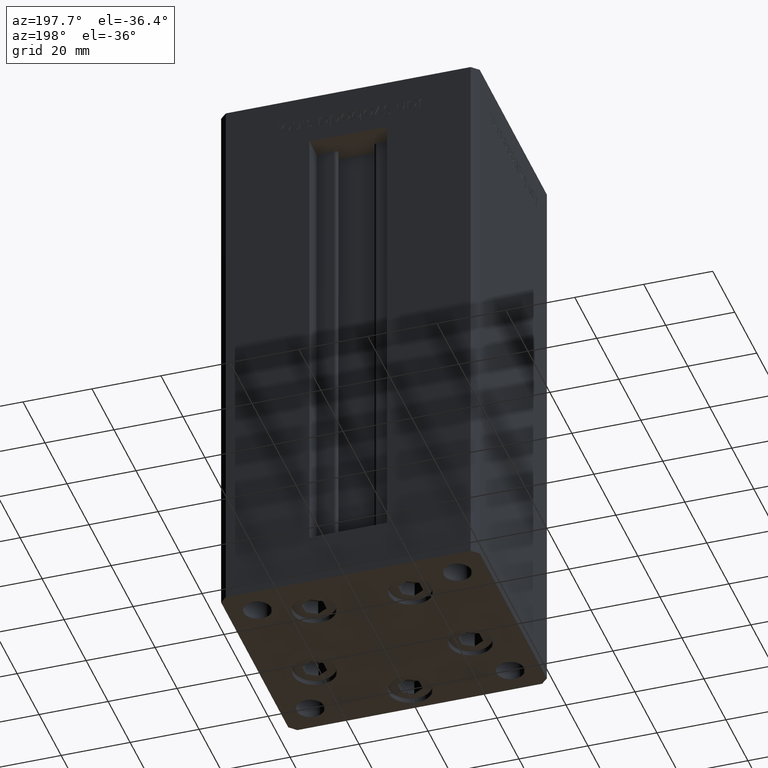
[diagram: clean part render]
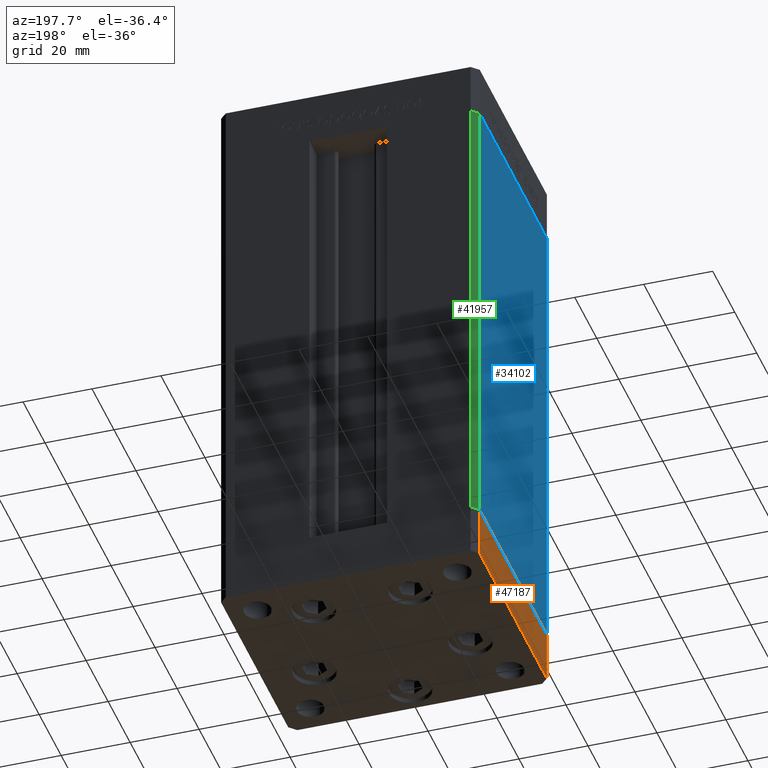
[diagram: same view with three faces highlighted in distinct colors, each labeled with its STEP entity id]
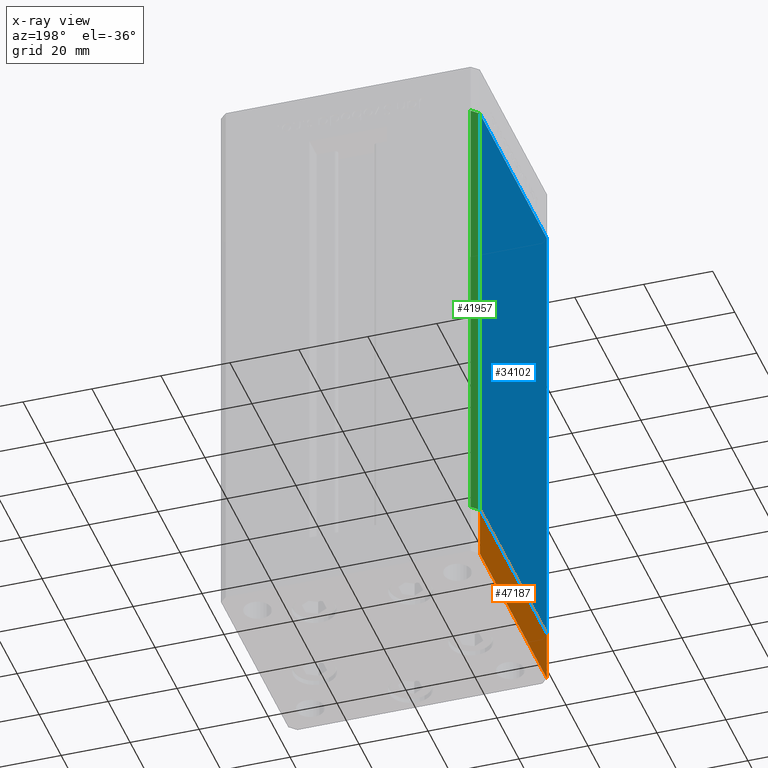
[diagram: x-ray of the same camera — body ghosted, the three highlighted faces saturated]
A machine part, auxiliary view with three faces highlighted in distinct colors.
The next image is the same camera in x-ray (body ghosted, the three faces saturated) — at least one of them is partly hidden behind the body in this view.
Their STEP definitions:

[orange] entity #47187 — the highlighted planar face has unit normal (-1, 0, 0).
#4428 = CARTESIAN_POINT ( 'NONE',  ( 37.49999999999992184, 30.50000000000001066, 0.000000000000000000 ) ) ;
#4507 = LINE ( 'NONE', #36712, #32258 ) ;
#6826 = VERTEX_POINT ( 'NONE', #4428 ) ;
#7796 = VERTEX_POINT ( 'NONE', #28559 ) ;
#10261 = VECTOR ( 'NONE', #15707, 1000.000000000000000 ) ;
#11123 = AXIS2_PLACEMENT_3D ( 'NONE', #48661, #16507, #20466 ) ;
#11572 = EDGE_CURVE ( 'NONE', #7796, #50452, #51569, .T. ) ;
#11751 = CARTESIAN_POINT ( 'NONE',  ( 37.50000000000001421, -30.50000000000000711, -15.00000000000000000 ) ) ;
#12047 = CARTESIAN_POINT ( 'NONE',  ( 37.49999999999992184, 30.50000000000001066, -15.00000000000000000 ) ) ;
#12560 = CARTESIAN_POINT ( 'NONE',  ( 37.49999999999992184, 30.50000000000001066, -15.00000000000000000 ) ) ;
#14407 = EDGE_CURVE ( 'NONE', #7796, #26868, #4507, .T. ) ;
#15489 = LINE ( 'NONE', #12047, #20384 ) ;
#15707 = DIRECTION ( 'NONE',  ( -1.478780668045802821E-15, 1.000000000000000000, 0.000000000000000000 ) ) ;
#16507 = DIRECTION ( 'NONE',  ( 1.000000000000000000, 1.478780668045803018E-15, -0.000000000000000000 ) ) ;
#17932 = LINE ( 'NONE', #34018, #23931 ) ;
#20384 = VECTOR ( 'NONE', #31593, 1000.000000000000000 ) ;
#20466 = DIRECTION ( 'NONE',  ( -1.478780668045803018E-15, 1.000000000000000000, 0.000000000000000000 ) ) ;
#21552 = ORIENTED_EDGE ( 'NONE', *, *, #11572, .T. ) ;
#23505 = EDGE_CURVE ( 'NONE', #26868, #6826, #17932, .T. ) ;
#23931 = VECTOR ( 'NONE', #26110, 1000.000000000000000 ) ;
#24268 = EDGE_LOOP ( 'NONE', ( #48319, #43652, #21552, #48952 ) ) ;
#25202 = PLANE ( 'NONE',  #11123 ) ;
#26110 = DIRECTION ( 'NONE',  ( -1.478780668045802821E-15, 1.000000000000000000, 0.000000000000000000 ) ) ;
#26868 = VERTEX_POINT ( 'NONE', #33401 ) ;
#28559 = CARTESIAN_POINT ( 'NONE',  ( 37.50000000000001421, -30.50000000000000711, -15.00000000000000000 ) ) ;
#31593 = DIRECTION ( 'NONE',  ( 0.000000000000000000, 0.000000000000000000, 1.000000000000000000 ) ) ;
#32258 = VECTOR ( 'NONE', #48033, 1000.000000000000000 ) ;
#33378 = FACE_OUTER_BOUND ( 'NONE', #24268, .T. ) ;
#33401 = CARTESIAN_POINT ( 'NONE',  ( 37.50000000000001421, -30.50000000000000711, 0.000000000000000000 ) ) ;
#34018 = CARTESIAN_POINT ( 'NONE',  ( 37.50000000000001421, -30.50000000000000711, 0.000000000000000000 ) ) ;
#36712 = CARTESIAN_POINT ( 'NONE',  ( 37.50000000000001421, -30.50000000000000711, -15.00000000000000000 ) ) ;
#41970 = EDGE_CURVE ( 'NONE', #50452, #6826, #15489, .T. ) ;
#43652 = ORIENTED_EDGE ( 'NONE', *, *, #14407, .F. ) ;
#47187 = ADVANCED_FACE ( 'NONE', ( #33378 ), #25202, .T. ) ;
#48033 = DIRECTION ( 'NONE',  ( 0.000000000000000000, 0.000000000000000000, 1.000000000000000000 ) ) ;
#48319 = ORIENTED_EDGE ( 'NONE', *, *, #23505, .F. ) ;
#48661 = CARTESIAN_POINT ( 'NONE',  ( 37.50000000000001421, -30.50000000000000711, -15.00000000000000000 ) ) ;
#48952 = ORIENTED_EDGE ( 'NONE', *, *, #41970, .T. ) ;
#50452 = VERTEX_POINT ( 'NONE', #12560 ) ;
#51569 = LINE ( 'NONE', #11751, #10261 ) ;

[blue] entity #34102 — the highlighted planar face has unit normal (1, 0, 0).
#1197 = ORIENTED_EDGE ( 'NONE', *, *, #26623, .T. ) ;
#3395 = CARTESIAN_POINT ( 'NONE',  ( -37.50000000000000711, 30.50000000000000000, 136.0000000000000000 ) ) ;
#4600 = EDGE_CURVE ( 'NONE', #27810, #32783, #6488, .T. ) ;
#5036 = CARTESIAN_POINT ( 'NONE',  ( -37.50000000000000711, 30.50000000000000000, 136.0000000000000000 ) ) ;
#5204 = FACE_OUTER_BOUND ( 'NONE', #5382, .T. ) ;
#5382 = EDGE_LOOP ( 'NONE', ( #30797, #30558, #30203, #1197 ) ) ;
#6488 = LINE ( 'NONE', #18901, #21826 ) ;
#7281 = DIRECTION ( 'NONE',  ( 2.275047181608927644E-16, -1.000000000000000000, 0.000000000000000000 ) ) ;
#9218 = VECTOR ( 'NONE', #38310, 1000.000000000000000 ) ;
#10862 = LINE ( 'NONE', #45950, #9218 ) ;
#11615 = CARTESIAN_POINT ( 'NONE',  ( -37.49999999999999289, -30.50000000000000000, 136.0000000000000000 ) ) ;
#11864 = LINE ( 'NONE', #11615, #18808 ) ;
#12362 = PLANE ( 'NONE',  #30155 ) ;
#12887 = CARTESIAN_POINT ( 'NONE',  ( -37.50000000000000711, 30.50000000000000000, 136.0000000000000000 ) ) ;
#15501 = EDGE_CURVE ( 'NONE', #32783, #21915, #11864, .T. ) ;
#16833 = DIRECTION ( 'NONE',  ( -2.275047181608927644E-16, 1.000000000000000000, 0.000000000000000000 ) ) ;
#18808 = VECTOR ( 'NONE', #26929, 1000.000000000000000 ) ;
#18901 = CARTESIAN_POINT ( 'NONE',  ( -37.50000000000000711, 30.50000000000000000, 136.0000000000000000 ) ) ;
#21826 = VECTOR ( 'NONE', #7281, 1000.000000000000000 ) ;
#21915 = VERTEX_POINT ( 'NONE', #30000 ) ;
#26623 = EDGE_CURVE ( 'NONE', #27810, #29472, #28229, .T. ) ;
#26929 = DIRECTION ( 'NONE',  ( -0.000000000000000000, -0.000000000000000000, -1.000000000000000000 ) ) ;
#27810 = VERTEX_POINT ( 'NONE', #5036 ) ;
#28229 = LINE ( 'NONE', #3395, #41734 ) ;
#29472 = VERTEX_POINT ( 'NONE', #47081 ) ;
#30000 = CARTESIAN_POINT ( 'NONE',  ( -37.49999999999999289, -30.50000000000000000, 0.000000000000000000 ) ) ;
#30155 = AXIS2_PLACEMENT_3D ( 'NONE', #12887, #44517, #16833 ) ;
#30203 = ORIENTED_EDGE ( 'NONE', *, *, #4600, .F. ) ;
#30558 = ORIENTED_EDGE ( 'NONE', *, *, #15501, .F. ) ;
#30797 = ORIENTED_EDGE ( 'NONE', *, *, #35985, .T. ) ;
#32783 = VERTEX_POINT ( 'NONE', #51787 ) ;
#34102 = ADVANCED_FACE ( 'NONE', ( #5204 ), #12362, .F. ) ;
#35985 = EDGE_CURVE ( 'NONE', #29472, #21915, #10862, .T. ) ;
#38310 = DIRECTION ( 'NONE',  ( 2.275047181608927644E-16, -1.000000000000000000, 0.000000000000000000 ) ) ;
#41734 = VECTOR ( 'NONE', #51681, 1000.000000000000000 ) ;
#44517 = DIRECTION ( 'NONE',  ( 1.000000000000000000, 2.275047181608927644E-16, -0.000000000000000000 ) ) ;
#45950 = CARTESIAN_POINT ( 'NONE',  ( -37.50000000000000711, 30.50000000000000000, 0.000000000000000000 ) ) ;
#47081 = CARTESIAN_POINT ( 'NONE',  ( -37.50000000000000711, 30.50000000000000000, 0.000000000000000000 ) ) ;
#51681 = DIRECTION ( 'NONE',  ( -0.000000000000000000, -0.000000000000000000, -1.000000000000000000 ) ) ;
#51787 = CARTESIAN_POINT ( 'NONE',  ( -37.49999999999999289, -30.50000000000000000, 136.0000000000000000 ) ) ;

[green] entity #41957 — the highlighted planar face has unit normal (0.7071, -0.7071, 0).
#139 = CARTESIAN_POINT ( 'NONE',  ( -35.50000000000000000, 32.49999999999999289, 136.0000000000000000 ) ) ;
#1043 = LINE ( 'NONE', #1315, #4223 ) ;
#1097 = CARTESIAN_POINT ( 'NONE',  ( -35.50000000000000000, 32.49999999999999289, 0.000000000000000000 ) ) ;
#1315 = CARTESIAN_POINT ( 'NONE',  ( -35.50000000000000000, 32.49999999999999289, 136.0000000000000000 ) ) ;
#3395 = CARTESIAN_POINT ( 'NONE',  ( -37.50000000000000711, 30.50000000000000000, 136.0000000000000000 ) ) ;
#4223 = VECTOR ( 'NONE', #49590, 1000.000000000000114 ) ;
#5036 = CARTESIAN_POINT ( 'NONE',  ( -37.50000000000000711, 30.50000000000000000, 136.0000000000000000 ) ) ;
#7236 = EDGE_CURVE ( 'NONE', #35578, #27810, #1043, .T. ) ;
#9057 = EDGE_CURVE ( 'NONE', #48665, #29472, #31094, .T. ) ;
#12166 = CARTESIAN_POINT ( 'NONE',  ( -35.50000000000000000, 32.49999999999999289, 136.0000000000000000 ) ) ;
#16018 = ORIENTED_EDGE ( 'NONE', *, *, #9057, .T. ) ;
#16382 = LINE ( 'NONE', #12166, #32024 ) ;
#20324 = VECTOR ( 'NONE', #26098, 1000.000000000000114 ) ;
#23255 = EDGE_LOOP ( 'NONE', ( #16018, #44905, #30643, #51959 ) ) ;
#24183 = FACE_OUTER_BOUND ( 'NONE', #23255, .T. ) ;
#26098 = DIRECTION ( 'NONE',  ( -0.7071067811865500152, -0.7071067811865451302, 0.000000000000000000 ) ) ;
#26623 = EDGE_CURVE ( 'NONE', #27810, #29472, #28229, .T. ) ;
#27810 = VERTEX_POINT ( 'NONE', #5036 ) ;
#27900 = DIRECTION ( 'NONE',  ( 0.7071067811865500152, 0.7071067811865451302, 0.000000000000000000 ) ) ;
#28229 = LINE ( 'NONE', #3395, #41734 ) ;
#29472 = VERTEX_POINT ( 'NONE', #47081 ) ;
#30643 = ORIENTED_EDGE ( 'NONE', *, *, #7236, .F. ) ;
#31094 = LINE ( 'NONE', #47146, #20324 ) ;
#32024 = VECTOR ( 'NONE', #36691, 1000.000000000000000 ) ;
#32095 = DIRECTION ( 'NONE',  ( 0.7071067811865451302, -0.7071067811865500152, 0.000000000000000000 ) ) ;
#32165 = AXIS2_PLACEMENT_3D ( 'NONE', #139, #32095, #27900 ) ;
#35578 = VERTEX_POINT ( 'NONE', #51650 ) ;
#36258 = EDGE_CURVE ( 'NONE', #35578, #48665, #16382, .T. ) ;
#36691 = DIRECTION ( 'NONE',  ( -0.000000000000000000, -0.000000000000000000, -1.000000000000000000 ) ) ;
#41734 = VECTOR ( 'NONE', #51681, 1000.000000000000000 ) ;
#41957 = ADVANCED_FACE ( 'NONE', ( #24183 ), #51614, .F. ) ;
#44905 = ORIENTED_EDGE ( 'NONE', *, *, #26623, .F. ) ;
#47081 = CARTESIAN_POINT ( 'NONE',  ( -37.50000000000000711, 30.50000000000000000, 0.000000000000000000 ) ) ;
#47146 = CARTESIAN_POINT ( 'NONE',  ( -35.50000000000000000, 32.49999999999999289, 0.000000000000000000 ) ) ;
#48665 = VERTEX_POINT ( 'NONE', #1097 ) ;
#49590 = DIRECTION ( 'NONE',  ( -0.7071067811865500152, -0.7071067811865451302, 0.000000000000000000 ) ) ;
#51614 = PLANE ( 'NONE',  #32165 ) ;
#51650 = CARTESIAN_POINT ( 'NONE',  ( -35.50000000000000000, 32.49999999999999289, 136.0000000000000000 ) ) ;
#51681 = DIRECTION ( 'NONE',  ( -0.000000000000000000, -0.000000000000000000, -1.000000000000000000 ) ) ;
#51959 = ORIENTED_EDGE ( 'NONE', *, *, #36258, .T. ) ;